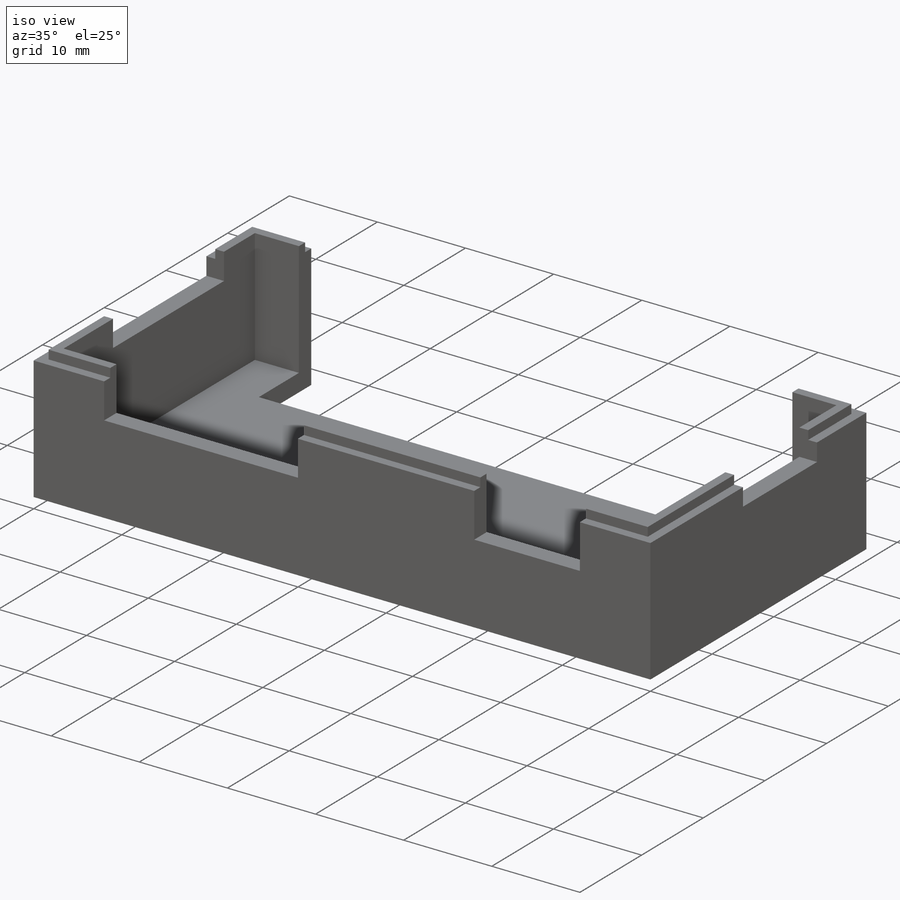
[diagram: iso view]
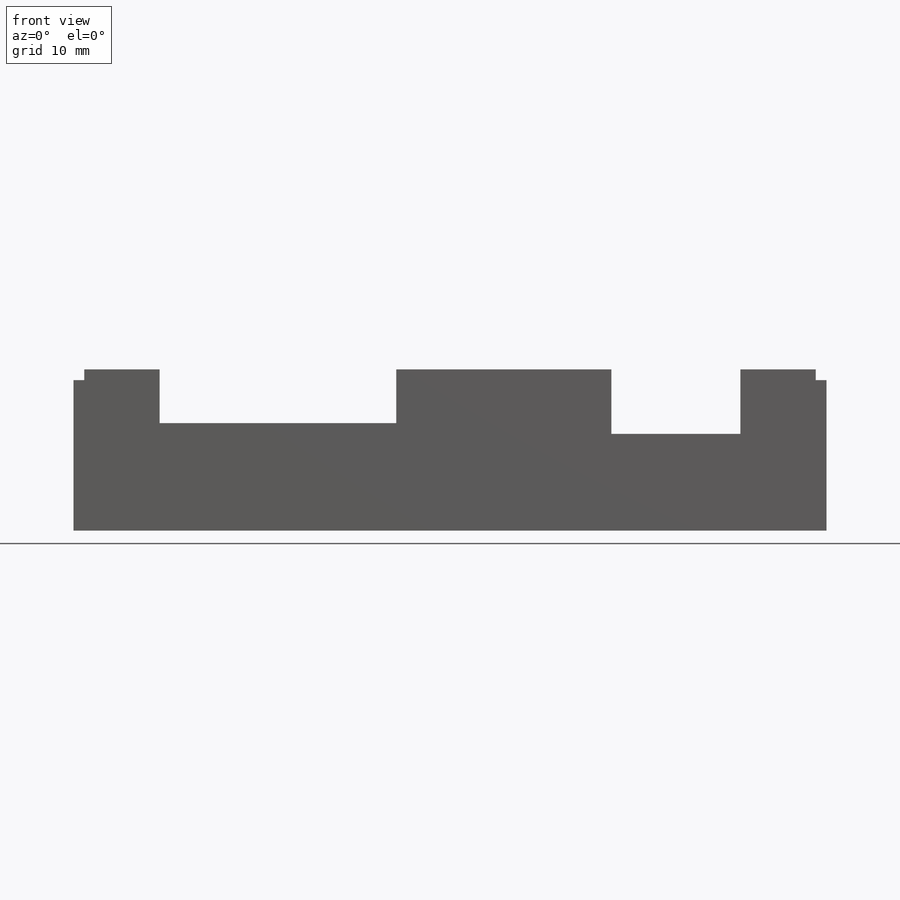
[diagram: front view]
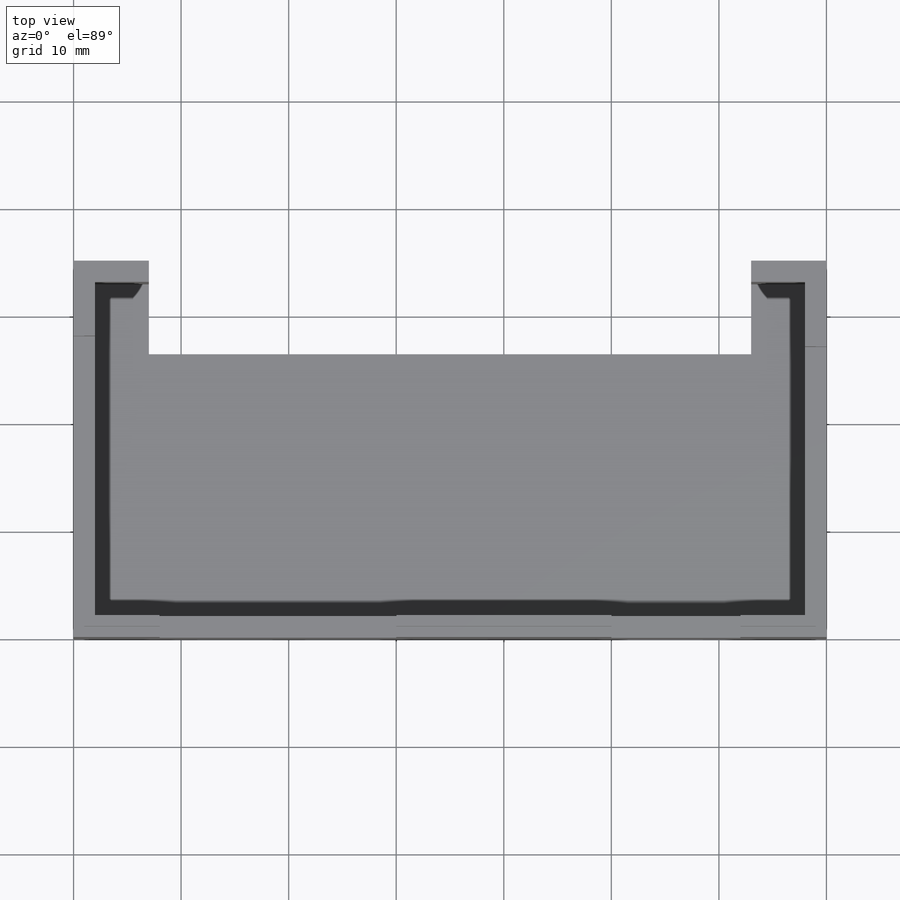
[diagram: top view]
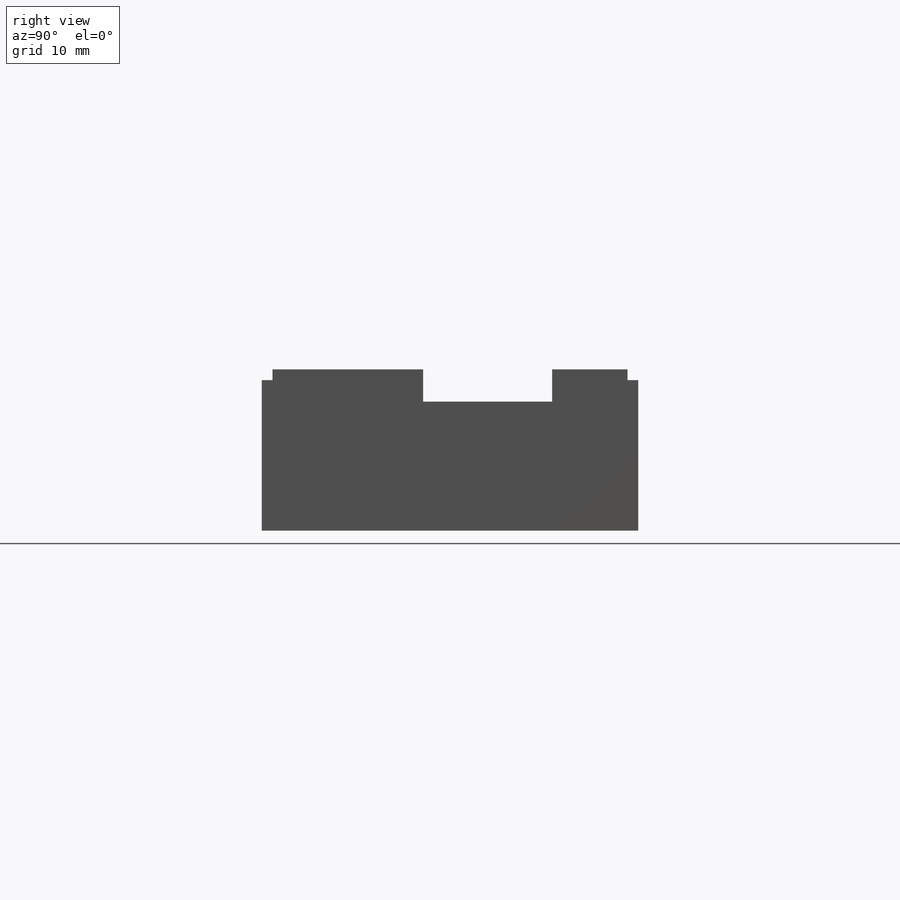
[diagram: right view]
SOLIDWORKS PART (.sldprt)
format: sldprt  version: not decoded by parser v0  size: 289,792 bytes
history: native  units: mm
features: sketch x8, cut_extrude x5, extrude x3, material x1 (+11 scaffold rows collapsed)
feature tree (28):
  scaffold x11  (default folders/planes/origin — collapsed)
  material  "Material <not specified>"
  sketch  "Sketch1"  dims[D1=70.0mm D2=35.0mm]
  extrude  "Boss-Extrude1"  Depth=2mm
  sketch  "Sketch2"  dims[D1=0.0mm D2=2.0mm]
  extrude  "Boss-Extrude2"  Depth=12mm
  sketch  "Sketch3"  dims[D1=8.5mm D2=7.0mm D3=56.0mm]
  cut_extrude  "Cut-Extrude1"  Depth=17mm
  sketch  "Sketch4"  dims[D1=2.0mm D2=8.0mm D3=12.0mm]
  cut_extrude  "Cut-Extrude2"  Depth=17mm
  sketch  "Sketch5"  dims[D1=5.0mm D2=8.0mm D3=12.0mm D4=4.0mm D5=4.0mm D6=8.0mm D7=9.0mm D8=4.0mm D9=9.0mm D10=~22.586997mm]
  cut_extrude  "Cut-Extrude3"  Depth=17mm
  sketch  "Sketch6"  dims[D1=2.0mm D2=7.0mm D3=18.0mm]
  cut_extrude  "Cut-Extrude4"  Depth=17mm
  sketch  "Sketch7"  dims[D1=1.0mm]
  extrude  "Boss-Extrude4"  Depth=1mm
  sketch  "Sketch8"
  cut_extrude  "Cut-Extrude5"  Depth=3mm
decode coverage: 15 of 16 modeling features carry decoded parameters
note: ~ marks probable driven/reference dimensions
note: suppression state not decoded; provenance and decode notes live in map.json
